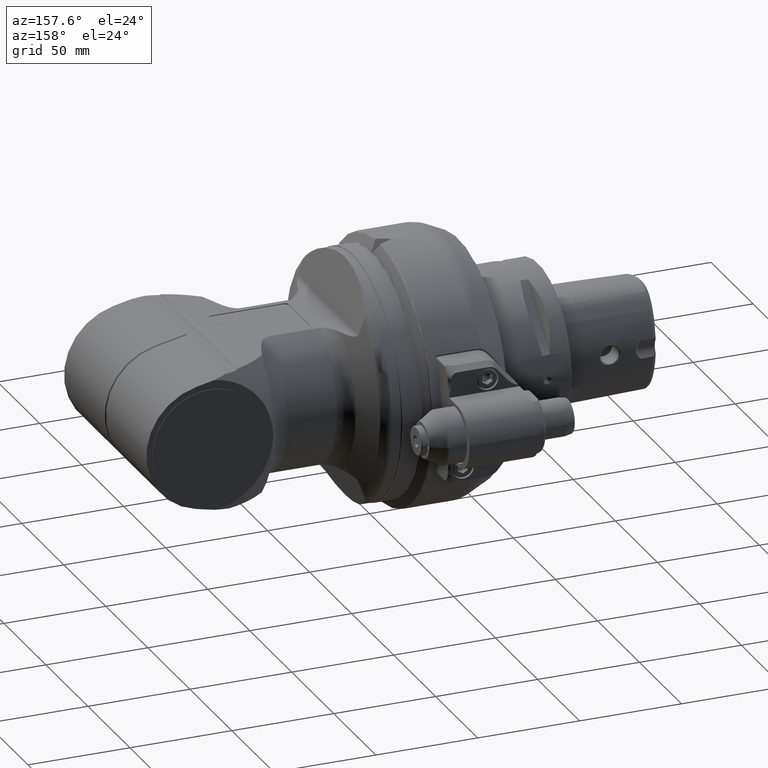
[diagram: clean part render]
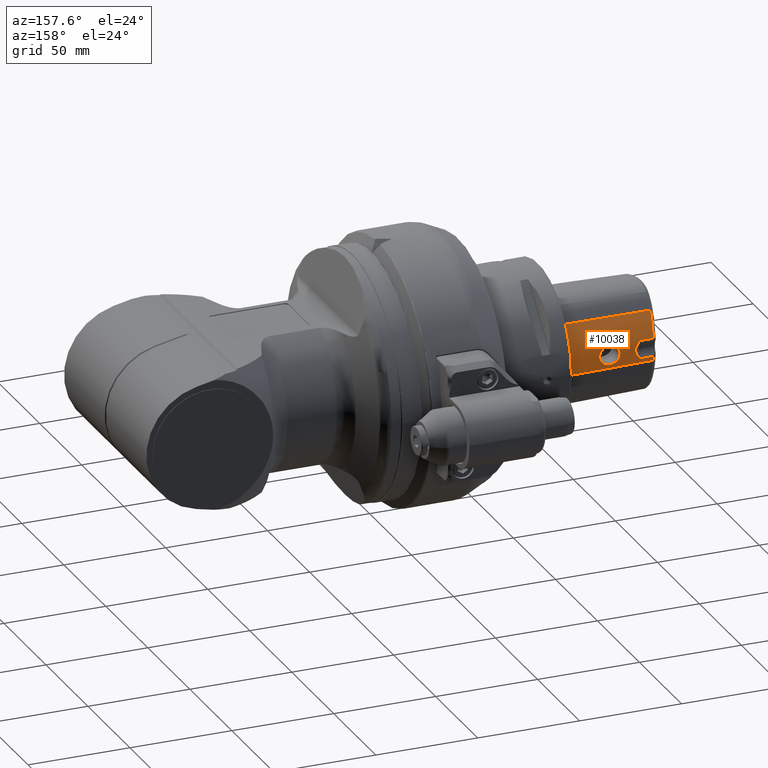
[diagram: same view with one face highlighted and labeled with its STEP entity id]
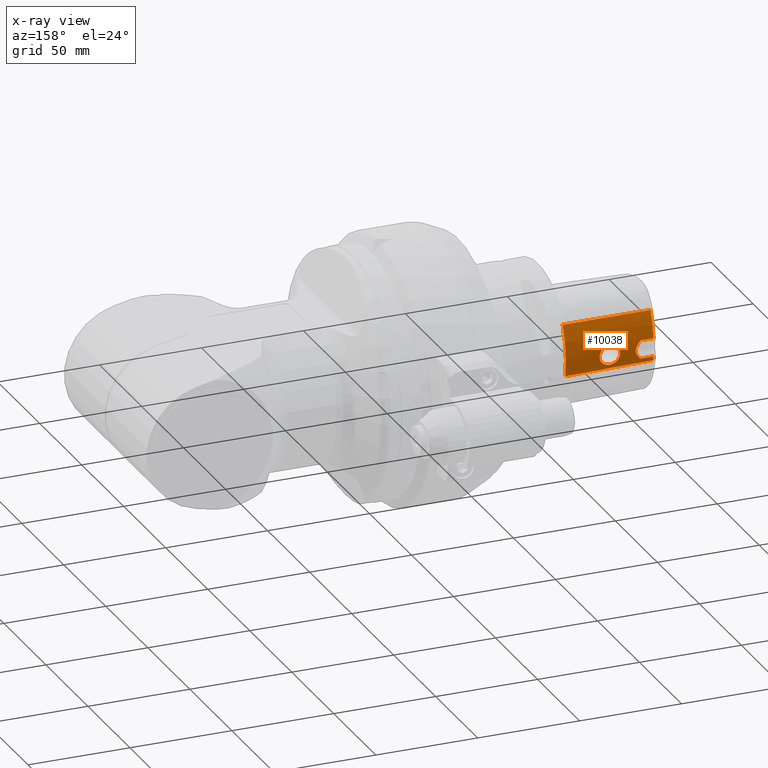
[diagram: x-ray of the same camera — body ghosted, the highlighted face saturated]
A machine part, auxiliary view. The second image highlights one B-rep face of the part: STEP entity #10038.
The next image is the same camera in x-ray: the body ghosted, the highlighted face saturated — about 0% of this face is hidden behind the body in this view.
In plain terms, the highlighted face is a freeform B-spline surface patch.
Its self-contained STEP definition (entity closure, byte-faithful):
#32=B_SPLINE_SURFACE_WITH_KNOTS('',3,3,((#35380,#35381,#35382,#35383),(#35384,
#35385,#35386,#35387),(#35388,#35389,#35390,#35391),(#35392,#35393,#35394,
#35395),(#35396,#35397,#35398,#35399),(#35400,#35401,#35402,#35403),(#35404,
#35405,#35406,#35407),(#35408,#35409,#35410,#35411),(#35412,#35413,#35414,
#35415),(#35416,#35417,#35418,#35419),(#35420,#35421,#35422,#35423),(#35424,
#35425,#35426,#35427),(#35428,#35429,#35430,#35431),(#35432,#35433,#35434,
#35435),(#35436,#35437,#35438,#35439),(#35440,#35441,#35442,#35443),(#35444,
#35445,#35446,#35447)),.UNSPECIFIED.,.F.,.F.,.F.,(4,1,1,1,1,1,1,1,1,1,1,
1,1,1,4),(4,4),(-0.009861422379836,0.,0.06666648858482,0.1999994657544,
0.2166661047242,0.2333327610175,0.2666660736043,0.3333326987778,0.3999993239512,
0.4333326365379,0.46666595101,0.5999994810713,0.7333329496996,1.,1.009948409115),
(0.3837668044978,0.6087747577561),.UNSPECIFIED.);
#356=FACE_BOUND('',#2087,.T.);
#504=B_SPLINE_CURVE_WITH_KNOTS('',3,(#32462,#32463,#32464,#32465,#32466,
#32467),.UNSPECIFIED.,.F.,.F.,(4,2,4),(-2.47932922412265,-1.40822801715052,
-9.99999964612641E-7),.UNSPECIFIED.);
#518=B_SPLINE_CURVE_WITH_KNOTS('',3,(#34862,#34863,#34864,#34865,#34866,
#34867,#34868,#34869,#34870,#34871,#34872,#34873,#34874,#34875,#34876,#34877,
#34878,#34879,#34880,#34881,#34882,#34883,#34884,#34885),.UNSPECIFIED.,
 .F.,.F.,(4,2,2,2,2,2,2,2,2,2,2,4),(-1.3191920055591,-1.07082807643372,
-0.988299987574448,-0.658053533161727,-0.57497793410459,-0.538609582029077,
-0.470951501281565,-0.352944568913436,-0.176286548263202,-0.0881055088286385,
-0.044056284628848,-9.99999941297958E-7),.UNSPECIFIED.);
#522=B_SPLINE_CURVE_WITH_KNOTS('',3,(#34941,#34942,#34943,#34944,#34945,
#34946),.UNSPECIFIED.,.F.,.F.,(4,2,4),(2.93702304660082E-6,0.105710345428187,
0.211417168852141),.UNSPECIFIED.);
#527=B_SPLINE_CURVE_WITH_KNOTS('',3,(#35449,#35450,#35451,#35452,#35453,
#35454),.UNSPECIFIED.,.F.,.F.,(4,2,4),(8.53288851896874E-6,0.325162686322067,
0.650327835221524),.UNSPECIFIED.);
#528=B_SPLINE_CURVE_WITH_KNOTS('',3,(#35456,#35457,#35458,#35459,#35460,
#35461,#35462,#35463,#35464,#35465,#35466,#35467),.UNSPECIFIED.,.F.,.F.,
(4,2,2,2,2,4),(-2.08191919071979,-1.5325350474745,-1.17773198302209,-0.81290625807855,
-0.471846467751386,-3.42429646669541E-6),.UNSPECIFIED.);
#529=B_SPLINE_CURVE_WITH_KNOTS('',3,(#35468,#35469,#35470,#35471,#35472,
#35473),.UNSPECIFIED.,.F.,.F.,(4,2,4),(0.,0.325164415898909,0.650318708817778),
 .UNSPECIFIED.);
#530=B_SPLINE_CURVE_WITH_KNOTS('',3,(#35476,#35477,#35478,#35479,#35480,
#35481,#35482,#35483,#35484,#35485,#35486,#35487,#35488,#35489,#35490,#35491,
#35492,#35493,#35494,#35495,#35496,#35497,#35498,#35499,#35500),
 .UNSPECIFIED.,.F.,.F.,(4,2,2,2,2,2,2,2,2,2,3,4),(-1.55645598104091,-1.48106800027809,
-1.30455966561901,-1.10864735320973,-0.940095698650463,-0.812315593748844,
-0.693406139178056,-0.556304040310855,-0.370905838241265,-0.180905726912898,
0.,5.1220872195501E-5),.UNSPECIFIED.);
#531=B_SPLINE_CURVE_WITH_KNOTS('',3,(#35501,#35502,#35503,#35504,#35505,
#35506,#35507,#35508,#35509,#35510,#35511,#35512,#35513,#35514,#35515,#35516,
#35517,#35518,#35519,#35520,#35521,#35522),.UNSPECIFIED.,.F.,.F.,(4,2,2,
2,2,2,2,2,2,2,4),(5.1220872195501E-5,0.148522407485108,0.32574075875126,
0.525674831150659,0.669823412767964,0.789984354123964,0.914016054244002,
1.07180162162281,1.26930208539772,1.45570585881576,1.55651013415765),
 .UNSPECIFIED.);
#1402=FACE_OUTER_BOUND('',#2086,.T.);
#2086=EDGE_LOOP('',(#9100,#9101,#9102,#9103,#9104,#9105,#9106,#9107));
#2087=EDGE_LOOP('',(#9108,#9109));
#2696=LINE('',#32704,#3300);
#2701=LINE('',#35379,#3305);
#3300=VECTOR('',#13953,1.7131574759685);
#3305=VECTOR('',#13958,1.71315841504376);
#4750=VERTEX_POINT('',#32453);
#4752=VERTEX_POINT('',#32461);
#4761=VERTEX_POINT('',#32663);
#4766=VERTEX_POINT('',#34834);
#4767=VERTEX_POINT('',#34861);
#4770=VERTEX_POINT('',#34934);
#4774=VERTEX_POINT('',#35448);
#4775=VERTEX_POINT('',#35455);
#4776=VERTEX_POINT('',#35474);
#4777=VERTEX_POINT('',#35475);
#6178=EDGE_CURVE('',#4752,#4750,#504,.T.);
#6206=EDGE_CURVE('',#4761,#4750,#2696,.T.);
#6212=EDGE_CURVE('',#4767,#4766,#518,.T.);
#6216=EDGE_CURVE('',#4761,#4770,#522,.F.);
#6224=EDGE_CURVE('',#4752,#4766,#2701,.T.);
#6225=EDGE_CURVE('',#4774,#4770,#527,.T.);
#6226=EDGE_CURVE('',#4775,#4774,#528,.F.);
#6227=EDGE_CURVE('',#4767,#4775,#529,.T.);
#6228=EDGE_CURVE('',#4776,#4777,#530,.T.);
#6229=EDGE_CURVE('',#4777,#4776,#531,.T.);
#9100=ORIENTED_EDGE('',*,*,#6224,.F.);
#9101=ORIENTED_EDGE('',*,*,#6178,.T.);
#9102=ORIENTED_EDGE('',*,*,#6206,.F.);
#9103=ORIENTED_EDGE('',*,*,#6216,.T.);
#9104=ORIENTED_EDGE('',*,*,#6225,.F.);
#9105=ORIENTED_EDGE('',*,*,#6226,.F.);
#9106=ORIENTED_EDGE('',*,*,#6227,.F.);
#9107=ORIENTED_EDGE('',*,*,#6212,.T.);
#9108=ORIENTED_EDGE('',*,*,#6228,.T.);
#9109=ORIENTED_EDGE('',*,*,#6229,.T.);
#10038=ADVANCED_FACE('',(#1402,#356),#32,.T.);
#13953=DIRECTION('',(0.999684554575603,0.0248062719822701,-0.00392940368511201));
#13958=DIRECTION('',(-0.999683994167464,-0.0224530394283092,-0.0113036642649996));
#32453=CARTESIAN_POINT('',(-3.11023622049084,0.983267716534879,-0.264330708661341));
#32461=CARTESIAN_POINT('',(-3.11023622047845,0.85000933930338,0.689449980812998));
#32462=CARTESIAN_POINT('Ctrl Pts',(-3.11023622047256,0.850009339303447,
0.689449980813032));
#32463=CARTESIAN_POINT('Ctrl Pts',(-3.11023622047256,0.912950098156636,
0.564621185565314));
#32464=CARTESIAN_POINT('Ctrl Pts',(-3.11023622047256,0.955182119743971,
0.426907424276276));
#32465=CARTESIAN_POINT('Ctrl Pts',(-3.11023622047256,1.0107708332297,0.107296996412532));
#32466=CARTESIAN_POINT('Ctrl Pts',(-3.11023622047256,1.01218124160635,-0.0817997518456601));
#32467=CARTESIAN_POINT('Ctrl Pts',(-3.11023622047256,0.98326771653528,-0.264330708661405));
#32663=CARTESIAN_POINT('',(-4.82285333096642,0.94077066252217,-0.257599020773426));
#32704=CARTESIAN_POINT('',(-4.82285328880905,0.940770666236614,-0.257599021361968));
#34834=CARTESIAN_POINT('',(-4.82285332038605,0.811543722686258,0.670085011714775));
#34861=CARTESIAN_POINT('',(-4.82285908086159,0.951633338416512,0.175057885910228));
#34862=CARTESIAN_POINT('Ctrl Pts',(-4.82285958363169,0.951633235316258,
0.175057874917974));
#34863=CARTESIAN_POINT('Ctrl Pts',(-4.82286183525965,0.948219756494313,
0.207177094555353));
#34864=CARTESIAN_POINT('Ctrl Pts',(-4.82284960331428,0.943853745659138,
0.239207426494141));
#34865=CARTESIAN_POINT('Ctrl Pts',(-4.82285356481967,0.936746983164412,
0.281709874145672));
#34866=CARTESIAN_POINT('Ctrl Pts',(-4.82285327174788,0.934861585521374,
0.292333261312018));
#34867=CARTESIAN_POINT('Ctrl Pts',(-4.82285286725826,0.924908658946943,
0.345257484591105));
#34868=CARTESIAN_POINT('Ctrl Pts',(-4.82285670560269,0.915234425838599,
0.387148598278741));
#34869=CARTESIAN_POINT('Ctrl Pts',(-4.82285312581266,0.900835244377691,
0.439031026005189));
#34870=CARTESIAN_POINT('Ctrl Pts',(-4.8228530851642,0.897827143290304,0.449423678177021));
#34871=CARTESIAN_POINT('Ctrl Pts',(-4.82285321644295,0.893334950478404,
0.4643173591022));
#34872=CARTESIAN_POINT('Ctrl Pts',(-4.82285358411853,0.891947290284391,
0.468837585383354));
#34873=CARTESIAN_POINT('Ctrl Pts',(-4.82285377766483,0.887911946763669,
0.481757494441309));
#34874=CARTESIAN_POINT('Ctrl Pts',(-4.8228512722786,0.885176775642967,0.490246990633459));
#34875=CARTESIAN_POINT('Ctrl Pts',(-4.82286027551643,0.877479417513128,
0.5133792597983));
#34876=CARTESIAN_POINT('Ctrl Pts',(-4.82286333916347,0.872338698976605,
0.528016733447282));
#34877=CARTESIAN_POINT('Ctrl Pts',(-4.82286670740614,0.858875915483464,
0.564317812632613));
#34878=CARTESIAN_POINT('Ctrl Pts',(-4.82286237329459,0.850237038090962,
0.585874140058143));
#34879=CARTESIAN_POINT('Ctrl Pts',(-4.82285184624852,0.836391361944228,
0.617799472908985));
#34880=CARTESIAN_POINT('Ctrl Pts',(-4.82284924017168,0.831633196084723,
0.628363000236603));
#34881=CARTESIAN_POINT('Ctrl Pts',(-4.82285039167589,0.824267599741041,
0.644100647539003));
#34882=CARTESIAN_POINT('Ctrl Pts',(-4.82285112815685,0.821775901564012,
0.649325448022856));
#34883=CARTESIAN_POINT('Ctrl Pts',(-4.82285253678571,0.816715254679447,
0.659738477493969));
#34884=CARTESIAN_POINT('Ctrl Pts',(-4.82285299606238,0.814147987090492,
0.664923230421155));
#34885=CARTESIAN_POINT('Ctrl Pts',(-4.82285332093528,0.811543721691618,
0.670085011212917));
#34934=CARTESIAN_POINT('',(-4.82285951677762,0.9516696564319,-0.175090708972807));
#34941=CARTESIAN_POINT('Ctrl Pts',(-4.82286009795132,0.951669306784913,
-0.175090636958888));
#34942=CARTESIAN_POINT('Ctrl Pts',(-4.82285847485407,0.950205556370693,
-0.188885625767891));
#34943=CARTESIAN_POINT('Ctrl Pts',(-4.82285679997803,0.948566062128776,
-0.202661923860601));
#34944=CARTESIAN_POINT('Ctrl Pts',(-4.82285413335249,0.944933783252662,
-0.230167809210254));
#34945=CARTESIAN_POINT('Ctrl Pts',(-4.82285323111869,0.942941049615755,
-0.243897071775655));
#34946=CARTESIAN_POINT('Ctrl Pts',(-4.82285333152261,0.940770662364436,
-0.25759902074837));
#35379=CARTESIAN_POINT('',(-3.11023622049024,0.850009339278347,0.689449980861811));
#35380=CARTESIAN_POINT('Ctrl Pts',(-3.07598387435378,0.846398019632677,
0.698439176592126));
#35381=CARTESIAN_POINT('Ctrl Pts',(-3.66969120391496,0.833116509240551,
0.691619454212992));
#35382=CARTESIAN_POINT('Ctrl Pts',(-4.26339853347638,0.819834998848819,
0.684799731833858));
#35383=CARTESIAN_POINT('Ctrl Pts',(-4.8571058630378,0.806553488457087,0.677980009455118));
#35384=CARTESIAN_POINT('Ctrl Pts',(-3.07598387437449,0.847869847736614,
0.695577655963779));
#35385=CARTESIAN_POINT('Ctrl Pts',(-3.66969120357638,0.834570441443307,
0.688793505582283));
#35386=CARTESIAN_POINT('Ctrl Pts',(-4.26339853277835,0.821271035149606,
0.682009355200787));
#35387=CARTESIAN_POINT('Ctrl Pts',(-4.85710586198032,0.807971628855905,
0.675225204818898));
#35388=CARTESIAN_POINT('Ctrl Pts',(-3.0759838745465,0.859201394226378,0.673326150657874));
#35389=CARTESIAN_POINT('Ctrl Pts',(-3.66969120076732,0.845764065884252,
0.66681767768937));
#35390=CARTESIAN_POINT('Ctrl Pts',(-4.2633985269878,0.832326737542126,0.66030920472126));
#35391=CARTESIAN_POINT('Ctrl Pts',(-4.85710585320866,0.818889409200394,
0.653800731752756));
#35392=CARTESIAN_POINT('Ctrl Pts',(-3.07598387514618,0.888364436904724,
0.611365491720866));
#35393=CARTESIAN_POINT('Ctrl Pts',(-3.66969119097283,0.874582457622835,
0.605598353048819));
#35394=CARTESIAN_POINT('Ctrl Pts',(-4.26339850679921,0.860800478340945,
0.599831214376378));
#35395=CARTESIAN_POINT('Ctrl Pts',(-4.85710582262559,0.847018499058661,
0.594064075704331));
#35396=CARTESIAN_POINT('Ctrl Pts',(-3.07598387457705,0.913531331794882,
0.545215524109842));
#35397=CARTESIAN_POINT('Ctrl Pts',(-3.66969120026811,0.899473201598425,
0.540171990379134));
#35398=CARTESIAN_POINT('Ctrl Pts',(-4.26339852595905,0.885415071401969,
0.535128456648425));
#35399=CARTESIAN_POINT('Ctrl Pts',(-4.85710585165,0.871356941205512,0.530084922917323));
#35400=CARTESIAN_POINT('Ctrl Pts',(-3.07598387562902,0.930288010243307,
0.493487992660236));
#35401=CARTESIAN_POINT('Ctrl Pts',(-3.66969118308622,0.916054591090157,
0.488972799164567));
#35402=CARTESIAN_POINT('Ctrl Pts',(-4.2633984905437,0.901821171937008,0.484457605668504));
#35403=CARTESIAN_POINT('Ctrl Pts',(-4.85710579800079,0.887587752784252,
0.479942412172835));
#35404=CARTESIAN_POINT('Ctrl Pts',(-3.07598387615996,0.936761230064173,
0.472725701353937));
#35405=CARTESIAN_POINT('Ctrl Pts',(-3.66969117441417,0.92246287448189,0.468419149240945));
#35406=CARTESIAN_POINT('Ctrl Pts',(-4.26339847266811,0.908164518899212,
0.464112597127953));
#35407=CARTESIAN_POINT('Ctrl Pts',(-4.85710577092205,0.893866163316929,
0.459806045015354));
#35408=CARTESIAN_POINT('Ctrl Pts',(-3.07598387649075,0.947490203331496,
0.436210800929528));
#35409=CARTESIAN_POINT('Ctrl Pts',(-3.66969116901181,0.933085683278346,
0.432267213287402));
#35410=CARTESIAN_POINT('Ctrl Pts',(-4.26339846153268,0.918681163225197,
0.428323625644882));
#35411=CARTESIAN_POINT('Ctrl Pts',(-4.85710575405394,0.904276643172047,
0.424380038002362));
#35412=CARTESIAN_POINT('Ctrl Pts',(-3.07598387682551,0.961123918901181,
0.38357050830815));
#35413=CARTESIAN_POINT('Ctrl Pts',(-3.66969116354331,0.94658798934252,0.380137256112835));
#35414=CARTESIAN_POINT('Ctrl Pts',(-4.26339845026102,0.932052059784252,
0.37670400391752));
#35415=CARTESIAN_POINT('Ctrl Pts',(-4.85710573697913,0.917516130225591,
0.373270751722205));
#35416=CARTESIAN_POINT('Ctrl Pts',(-3.07598387707126,0.972548756412205,
0.33040257701248));
#35417=CARTESIAN_POINT('Ctrl Pts',(-3.66969115952992,0.957904456087008,
0.327469505348425));
#35418=CARTESIAN_POINT('Ctrl Pts',(-4.26339844198858,0.943260155761811,
0.32453643368437));
#35419=CARTESIAN_POINT('Ctrl Pts',(-4.85710572444724,0.928615855436614,
0.321603362020354));
#35420=CARTESIAN_POINT('Ctrl Pts',(-3.07598387759177,0.980392420976378,
0.287615981401614));
#35421=CARTESIAN_POINT('Ctrl Pts',(-3.66969115102795,0.965674734376772,
0.28507620064185));
#35422=CARTESIAN_POINT('Ctrl Pts',(-4.26339842446417,0.950957047776772,
0.282536419882126));
#35423=CARTESIAN_POINT('Ctrl Pts',(-4.8571056979,0.936239361177165,0.279996639122362));
#35424=CARTESIAN_POINT('Ctrl Pts',(-3.07598387828315,0.99087685388622,0.22321655889815));
#35425=CARTESIAN_POINT('Ctrl Pts',(-3.66969113973543,0.976066751758661,
0.221258330710905));
#35426=CARTESIAN_POINT('Ctrl Pts',(-4.26339840118779,0.961256649631496,
0.219300102523661));
#35427=CARTESIAN_POINT('Ctrl Pts',(-4.85710566264016,0.946446547503937,
0.217341874336417));
#35428=CARTESIAN_POINT('Ctrl Pts',(-3.07598387828173,1.00184302292047,0.125905072388228));
#35429=CARTESIAN_POINT('Ctrl Pts',(-3.66969113975866,0.986937859452756,
0.124811585017598));
#35430=CARTESIAN_POINT('Ctrl Pts',(-4.26339840123543,0.972032695984646,
0.123718097646968));
#35431=CARTESIAN_POINT('Ctrl Pts',(-4.8571056627126,0.957127532516929,0.122624610276339));
#35432=CARTESIAN_POINT('Ctrl Pts',(-3.07598387891287,1.00797431473937,-0.0480904370762205));
#35433=CARTESIAN_POINT('Ctrl Pts',(-3.66969112945,0.993021184296063,-0.0476692183605118));
#35434=CARTESIAN_POINT('Ctrl Pts',(-4.2633983799874,0.978068053852756,-0.0472479996448031));
#35435=CARTESIAN_POINT('Ctrl Pts',(-4.85710563052441,0.963114923409055,
-0.0468267809290945));
#35436=CARTESIAN_POINT('Ctrl Pts',(-3.07598387904567,0.997472677548819,
-0.181790913804842));
#35437=CARTESIAN_POINT('Ctrl Pts',(-3.66969112728071,0.982621163073622,
-0.180196201463307));
#35438=CARTESIAN_POINT('Ctrl Pts',(-4.26339837551614,0.967769648598425,
-0.178601489121772));
#35439=CARTESIAN_POINT('Ctrl Pts',(-4.85710562375118,0.952918134123228,
-0.177006776780236));
#35440=CARTESIAN_POINT('Ctrl Pts',(-3.07598384749472,0.98309275147126,-0.270874549642126));
#35441=CARTESIAN_POINT('Ctrl Pts',(-3.6696916426126,0.968369581612598,-0.268483630819685));
#35442=CARTESIAN_POINT('Ctrl Pts',(-4.26339943773071,0.953646411753543,
-0.266092711997283));
#35443=CARTESIAN_POINT('Ctrl Pts',(-4.85710723284882,0.938923241894882,
-0.263701793174843));
#35444=CARTESIAN_POINT('Ctrl Pts',(-3.07598384631732,0.982566138820866,
-0.274076903591339));
#35445=CARTESIAN_POINT('Ctrl Pts',(-3.6696916618437,0.967847673890157,-0.271657349643425));
#35446=CARTESIAN_POINT('Ctrl Pts',(-4.26339947737008,0.953129208959449,
-0.269237795695512));
#35447=CARTESIAN_POINT('Ctrl Pts',(-4.85710729289606,0.93841074402874,-0.266818241747598));
#35448=CARTESIAN_POINT('',(-4.56692880681887,0.957580888168467,-0.180267748416163));
#35449=CARTESIAN_POINT('Ctrl Pts',(-4.56692847977946,0.957580434384099,
-0.180267364139973));
#35450=CARTESIAN_POINT('Ctrl Pts',(-4.60958002472066,0.95659345623454,-0.179431561575312));
#35451=CARTESIAN_POINT('Ctrl Pts',(-4.65224081493678,0.955607205168518,
-0.1785824560813));
#35452=CARTESIAN_POINT('Ctrl Pts',(-4.7375442763644,0.953637001346752,-0.176857317290143));
#35453=CARTESIAN_POINT('Ctrl Pts',(-4.78020677625071,0.952652590707697,
-0.175980882045856));
#35454=CARTESIAN_POINT('Ctrl Pts',(-4.82285865327701,0.951669363770654,
-0.175090443930953));
#35455=CARTESIAN_POINT('',(-4.5669291426448,0.957549512796091,0.180241185775518));
#35456=CARTESIAN_POINT('Ctrl Pts',(-4.56692916258022,0.957580414830593,
-0.180267385218111));
#35457=CARTESIAN_POINT('Ctrl Pts',(-4.5382958832963,0.961984602609928,-0.146476232473784));
#35458=CARTESIAN_POINT('Ctrl Pts',(-4.51330733709571,0.965099035530834,
-0.113681866689527));
#35459=CARTESIAN_POINT('Ctrl Pts',(-4.48532025667286,0.96829176836006,-0.0634507073793574));
#35460=CARTESIAN_POINT('Ctrl Pts',(-4.4782387138826,0.969011846405288,-0.0457083485896689));
#35461=CARTESIAN_POINT('Ctrl Pts',(-4.47062933468523,0.969785149343831,
-0.0116246918312155));
#35462=CARTESIAN_POINT('Ctrl Pts',(-4.47016132181203,0.969828965617247,
0.00527416144895123));
#35463=CARTESIAN_POINT('Ctrl Pts',(-4.47614390375609,0.969219941989167,
0.0390334423263325));
#35464=CARTESIAN_POINT('Ctrl Pts',(-4.48218414249518,0.968609877595499,
0.0560768083834515));
#35465=CARTESIAN_POINT('Ctrl Pts',(-4.50513471698224,0.966041524563115,
0.100626906143267));
#35466=CARTESIAN_POINT('Ctrl Pts',(-4.527095102339,0.963683331553222,0.133231501075817));
#35467=CARTESIAN_POINT('Ctrl Pts',(-4.56692915143133,0.957548980690448,
0.180240746531136));
#35468=CARTESIAN_POINT('Ctrl Pts',(-4.82285854120935,0.951633274557507,
0.175057753748093));
#35469=CARTESIAN_POINT('Ctrl Pts',(-4.78020670744817,0.952617249306317,
0.175949238361174));
#35470=CARTESIAN_POINT('Ctrl Pts',(-4.73754426270998,0.953602421763367,
0.176826701839446));
#35471=CARTESIAN_POINT('Ctrl Pts',(-4.65224077318071,0.955574178615044,
0.178553863254192));
#35472=CARTESIAN_POINT('Ctrl Pts',(-4.60957992275157,0.95656122072552,0.179403963069658));
#35473=CARTESIAN_POINT('Ctrl Pts',(-4.56692830491488,0.957549002594381,
0.180240742055954));
#35474=CARTESIAN_POINT('',(-3.77144374416604,0.987313655709988,-4.87890364045418E-8));
#35475=CARTESIAN_POINT('',(-4.17126037588869,0.977261870252904,6.65700666582676E-17));
#35476=CARTESIAN_POINT('Ctrl Pts',(-3.77144374416604,0.987313655709988,
-4.8789036382687E-8));
#35477=CARTESIAN_POINT('Ctrl Pts',(-3.77144410379224,0.987313293743865,
0.00982859641638655));
#35478=CARTESIAN_POINT('Ctrl Pts',(-3.77225701065747,0.987206904256334,
0.0196650325681487));
#35479=CARTESIAN_POINT('Ctrl Pts',(-3.77770281827023,0.986504605151465,
0.052261977936823));
#35480=CARTESIAN_POINT('Ctrl Pts',(-3.78589484452454,0.985448105006314,
0.0740681884343022));
#35481=CARTESIAN_POINT('Ctrl Pts',(-3.81118075693731,0.982492474542477,
0.115809231043907));
#35482=CARTESIAN_POINT('Ctrl Pts',(-3.82885108897314,0.980559747691883,
0.134784884226974));
#35483=CARTESIAN_POINT('Ctrl Pts',(-3.86747517356326,0.977074588942966,
0.16288563927732));
#35484=CARTESIAN_POINT('Ctrl Pts',(-3.88740190906038,0.975532876778724,
0.172856795870822));
#35485=CARTESIAN_POINT('Ctrl Pts',(-3.92450412793327,0.973338737031951,
0.184539969176396));
#35486=CARTESIAN_POINT('Ctrl Pts',(-3.94107700251206,0.972566587500742,
0.187634450772251));
#35487=CARTESIAN_POINT('Ctrl Pts',(-3.97342764590314,0.971508251301942,
0.189749683377663));
#35488=CARTESIAN_POINT('Ctrl Pts',(-3.98910315240597,0.97119435504587,0.189033225442987));
#35489=CARTESIAN_POINT('Ctrl Pts',(-4.02234851678529,0.970943495389853,
0.183760826620567));
#35490=CARTESIAN_POINT('Ctrl Pts',(-4.03972899603032,0.971073101395548,
0.178652026874658));
#35491=CARTESIAN_POINT('Ctrl Pts',(-4.07847691630028,0.971858631965996,
0.161467469485551));
#35492=CARTESIAN_POINT('Ctrl Pts',(-4.0988255863015,0.972678784975333,0.14768830902375));
#35493=CARTESIAN_POINT('Ctrl Pts',(-4.1337771767751,0.974504195021433,0.11295374833519));
#35494=CARTESIAN_POINT('Ctrl Pts',(-4.1479014189509,0.97548471716309,0.0921430454426448));
#35495=CARTESIAN_POINT('Ctrl Pts',(-4.16653566771875,0.976862021071033,
0.0471856405944095));
#35496=CARTESIAN_POINT('Ctrl Pts',(-4.1712561796885,0.977260131707833,0.0237610742447948));
#35497=CARTESIAN_POINT('Ctrl Pts',(-4.17126037346162,0.977261868868906,
2.01656350727685E-5));
#35498=CARTESIAN_POINT('Ctrl Pts',(-4.17126037464902,0.977261869360759,
1.34437359573846E-5));
#35499=CARTESIAN_POINT('Ctrl Pts',(-4.17126037545788,0.977261869822095,
6.7218575907132E-6));
#35500=CARTESIAN_POINT('Ctrl Pts',(-4.17126037588869,0.977261870252904,
1.09273919746571E-16));
#35501=CARTESIAN_POINT('Ctrl Pts',(-4.17126037588869,0.977261870252904,
1.09273919746571E-16));
#35502=CARTESIAN_POINT('Ctrl Pts',(-4.17126162465058,0.977263119014788,
-0.0194842869701779));
#35503=CARTESIAN_POINT('Ctrl Pts',(-4.16808562466505,0.97700082960038,-0.038794011084275));
#35504=CARTESIAN_POINT('Ctrl Pts',(-4.15449977689733,0.975970494422083,
-0.0793129532937897));
#35505=CARTESIAN_POINT('Ctrl Pts',(-4.14296693559201,0.975128610230494,
-0.0997017435072586));
#35506=CARTESIAN_POINT('Ctrl Pts',(-4.11120420686069,0.973273458950052,
-0.137658350461002));
#35507=CARTESIAN_POINT('Ctrl Pts',(-4.0903986803945,0.972285875437778,-0.154122386664523));
#35508=CARTESIAN_POINT('Ctrl Pts',(-4.05021420561676,0.971238555278866,
-0.17485603678504));
#35509=CARTESIAN_POINT('Ctrl Pts',(-4.03223031641697,0.971002085149219,
-0.181158113055626));
#35510=CARTESIAN_POINT('Ctrl Pts',(-3.99817961837433,0.971091500314329,
-0.188113154790597));
#35511=CARTESIAN_POINT('Ctrl Pts',(-3.98238143596491,0.971329448570103,
-0.189513412543474));
#35512=CARTESIAN_POINT('Ctrl Pts',(-3.950292598381,0.972227229512866,-0.188752020931754));
#35513=CARTESIAN_POINT('Ctrl Pts',(-3.93408697296626,0.972898138454347,
-0.186476194311559));
#35514=CARTESIAN_POINT('Ctrl Pts',(-3.89828857364645,0.974825990622808,
-0.177103963300422));
#35515=CARTESIAN_POINT('Ctrl Pts',(-3.87912330124048,0.976186006590476,
-0.168903070401617));
#35516=CARTESIAN_POINT('Ctrl Pts',(-3.8395912206742,0.979502940490956,-0.144270856821798));
#35517=CARTESIAN_POINT('Ctrl Pts',(-3.82043259577236,0.981493851067596,
-0.126468856323722));
#35518=CARTESIAN_POINT('Ctrl Pts',(-3.79129219357055,0.984784077771255,
-0.0854684406739522));
#35519=CARTESIAN_POINT('Ctrl Pts',(-3.78114818573612,0.986071093386304,
-0.0630326014855393));
#35520=CARTESIAN_POINT('Ctrl Pts',(-3.77289549568655,0.987124472159225,
-0.0262706659544078));
#35521=CARTESIAN_POINT('Ctrl Pts',(-3.77144326329551,0.987314139709325,
-0.0131423222323645));
#35522=CARTESIAN_POINT('Ctrl Pts',(-3.77144374416604,0.987313655709988,
-4.87890363936144E-8));